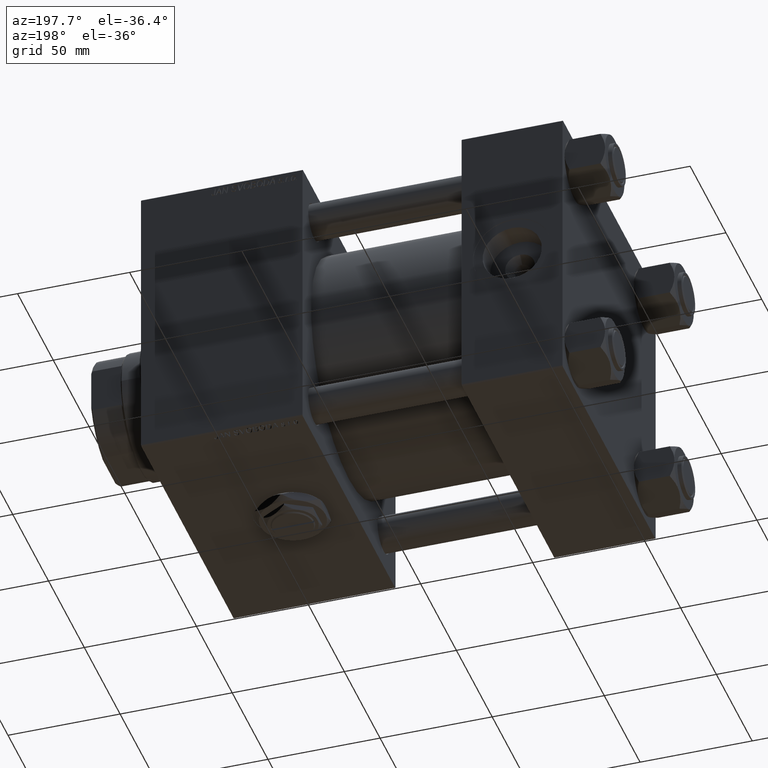
[diagram: clean part render]
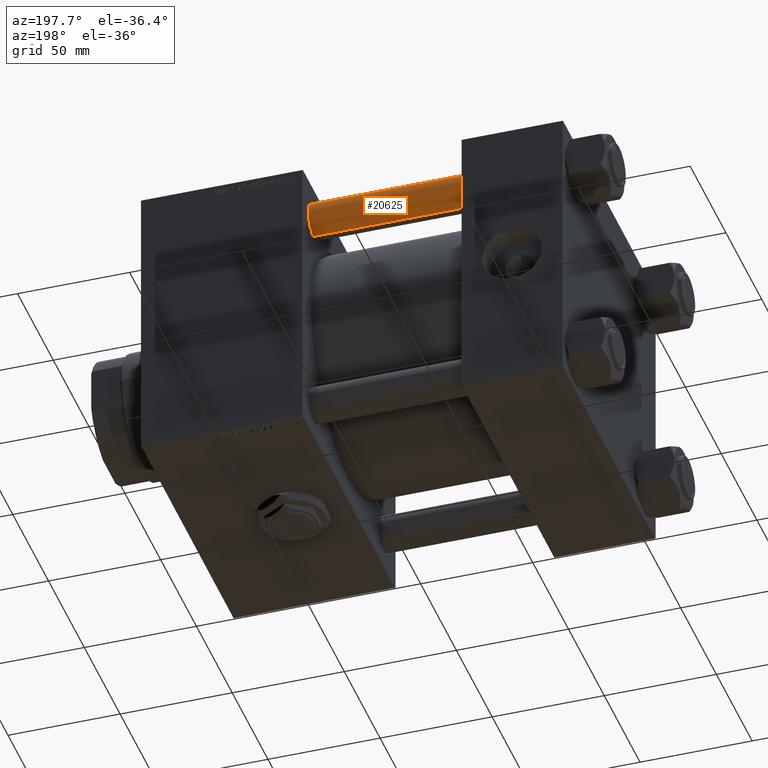
[diagram: same view with one face highlighted and labeled with its STEP entity id]
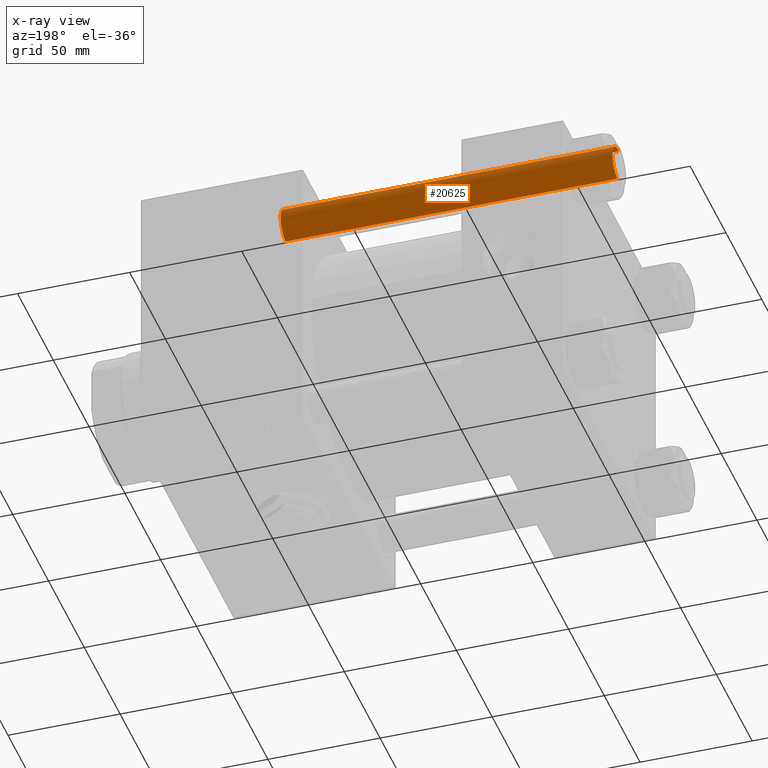
[diagram: x-ray of the same camera — body ghosted, the highlighted face saturated]
A machine part, auxiliary view. The second image highlights one B-rep face of the part: STEP entity #20625.
The next image is the same camera in x-ray: the body ghosted, the highlighted face saturated — about 0% of this face is hidden behind the body in this view.
In plain terms, the highlighted cylindrical surface (edge-blend (fillet) strip) has radius 8 mm, axis along (-1, 0, 0).
Its self-contained STEP definition (entity closure, byte-faithful):
#1174 = VERTEX_POINT ( 'NONE', #18926 ) ;
#1815 = FACE_OUTER_BOUND ( 'NONE', #30740, .T. ) ;
#2194 = ORIENTED_EDGE ( 'NONE', *, *, #11716, .T. ) ;
#2434 = DIRECTION ( 'NONE',  ( -0.000000000000000000, -0.000000000000000000, -1.000000000000000000 ) ) ;
#4772 = DIRECTION ( 'NONE',  ( -0.000000000000000000, -0.000000000000000000, -1.000000000000000000 ) ) ;
#6166 = VECTOR ( 'NONE', #49430, 1000.000000000000000 ) ;
#6440 = EDGE_CURVE ( 'NONE', #46750, #49580, #26987, .T. ) ;
#10492 = CARTESIAN_POINT ( 'NONE',  ( 8.000000000000000000, 9.797174393178825657E-16, 148.5000000000000000 ) ) ;
#11716 = EDGE_CURVE ( 'NONE', #46750, #49701, #28876, .T. ) ;
#13484 = ORIENTED_EDGE ( 'NONE', *, *, #6440, .F. ) ;
#13890 = AXIS2_PLACEMENT_3D ( 'NONE', #22190, #44978, #46759 ) ;
#15391 = CARTESIAN_POINT ( 'NONE',  ( -8.000000000000000000, 0.000000000000000000, 148.5000000000000000 ) ) ;
#17783 = ORIENTED_EDGE ( 'NONE', *, *, #26400, .T. ) ;
#18088 = CYLINDRICAL_SURFACE ( 'NONE', #25668, 8.000000000000000000 ) ;
#18913 = ORIENTED_EDGE ( 'NONE', *, *, #24439, .T. ) ;
#18926 = CARTESIAN_POINT ( 'NONE',  ( 8.000000000000000000, 9.797174393178825657E-16, 0.5000000000000281997 ) ) ;
#20332 = AXIS2_PLACEMENT_3D ( 'NONE', #38457, #29669, #46466 ) ;
#20625 = ADVANCED_FACE ( 'NONE', ( #1815 ), #18088, .T. ) ;
#21032 = DIRECTION ( 'NONE',  ( -1.000000000000000000, 0.000000000000000000, 0.000000000000000000 ) ) ;
#22190 = CARTESIAN_POINT ( 'NONE',  ( 0.000000000000000000, 0.000000000000000000, 0.5000000000000281997 ) ) ;
#24439 = EDGE_CURVE ( 'NONE', #49701, #1174, #34634, .T. ) ;
#25169 = CARTESIAN_POINT ( 'NONE',  ( -8.000000000000000000, 0.000000000000000000, 0.5000000000000281997 ) ) ;
#25668 = AXIS2_PLACEMENT_3D ( 'NONE', #50651, #4772, #21032 ) ;
#26400 = EDGE_CURVE ( 'NONE', #1174, #49580, #30950, .T. ) ;
#26987 = LINE ( 'NONE', #31249, #44880 ) ;
#28876 = CIRCLE ( 'NONE', #20332, 8.000000000000000000 ) ;
#29669 = DIRECTION ( 'NONE',  ( 0.000000000000000000, 0.000000000000000000, -1.000000000000000000 ) ) ;
#30740 = EDGE_LOOP ( 'NONE', ( #2194, #18913, #17783, #13484 ) ) ;
#30950 = CIRCLE ( 'NONE', #13890, 8.000000000000000000 ) ;
#31249 = CARTESIAN_POINT ( 'NONE',  ( -8.000000000000000000, 0.000000000000000000, 149.0000000000000000 ) ) ;
#34634 = LINE ( 'NONE', #45410, #6166 ) ;
#38457 = CARTESIAN_POINT ( 'NONE',  ( 0.000000000000000000, 0.000000000000000000, 148.5000000000000000 ) ) ;
#44880 = VECTOR ( 'NONE', #2434, 1000.000000000000000 ) ;
#44978 = DIRECTION ( 'NONE',  ( -0.000000000000000000, -0.000000000000000000, 1.000000000000000000 ) ) ;
#45410 = CARTESIAN_POINT ( 'NONE',  ( 8.000000000000000000, 9.797174393178825657E-16, 149.0000000000000000 ) ) ;
#46466 = DIRECTION ( 'NONE',  ( 1.000000000000000000, 0.000000000000000000, 0.000000000000000000 ) ) ;
#46750 = VERTEX_POINT ( 'NONE', #15391 ) ;
#46759 = DIRECTION ( 'NONE',  ( 1.000000000000000000, 0.000000000000000000, 0.000000000000000000 ) ) ;
#49430 = DIRECTION ( 'NONE',  ( -0.000000000000000000, -0.000000000000000000, -1.000000000000000000 ) ) ;
#49580 = VERTEX_POINT ( 'NONE', #25169 ) ;
#49701 = VERTEX_POINT ( 'NONE', #10492 ) ;
#50651 = CARTESIAN_POINT ( 'NONE',  ( 0.000000000000000000, 0.000000000000000000, 149.0000000000000000 ) ) ;